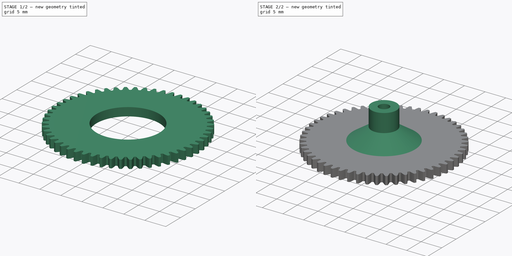
[diagram: build sequence overview — one tinted view per stage of 2, left to right]
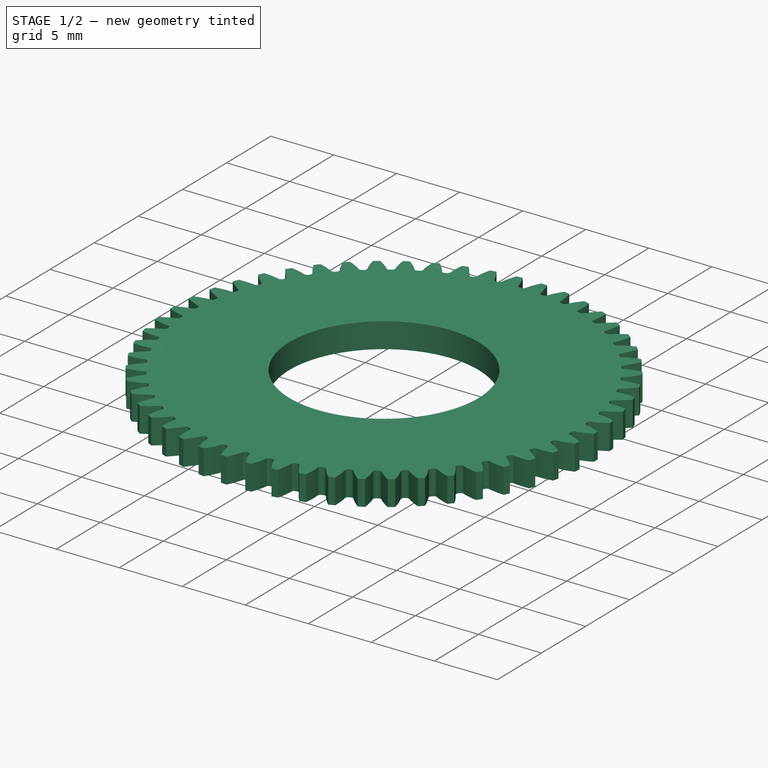
[diagram: stage 1 of 2 — iso view after this stage's code; geometry added in this stage tinted green]
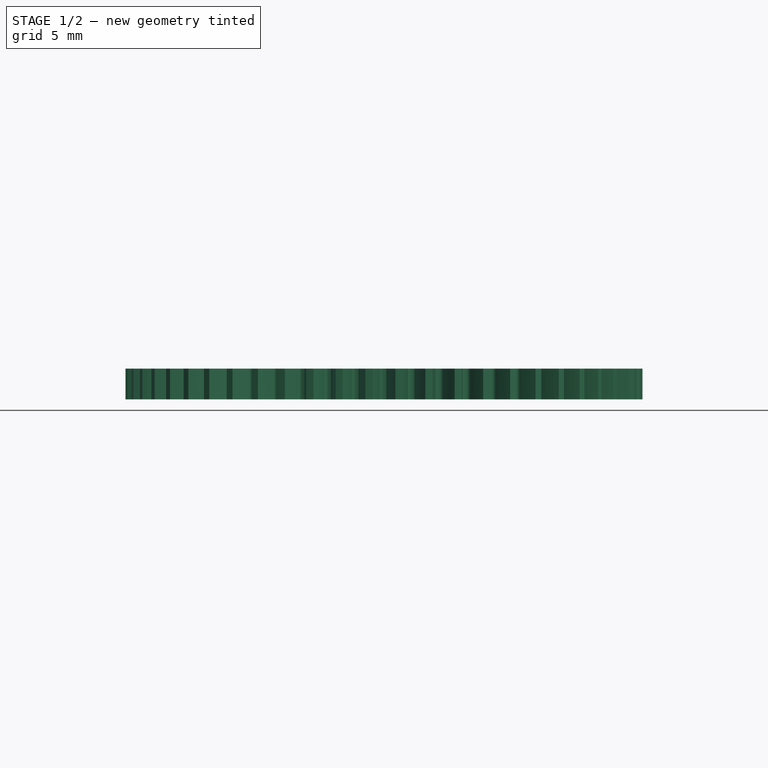
[diagram: stage 1 of 2 — front view after this stage's code; geometry added in this stage tinted green]
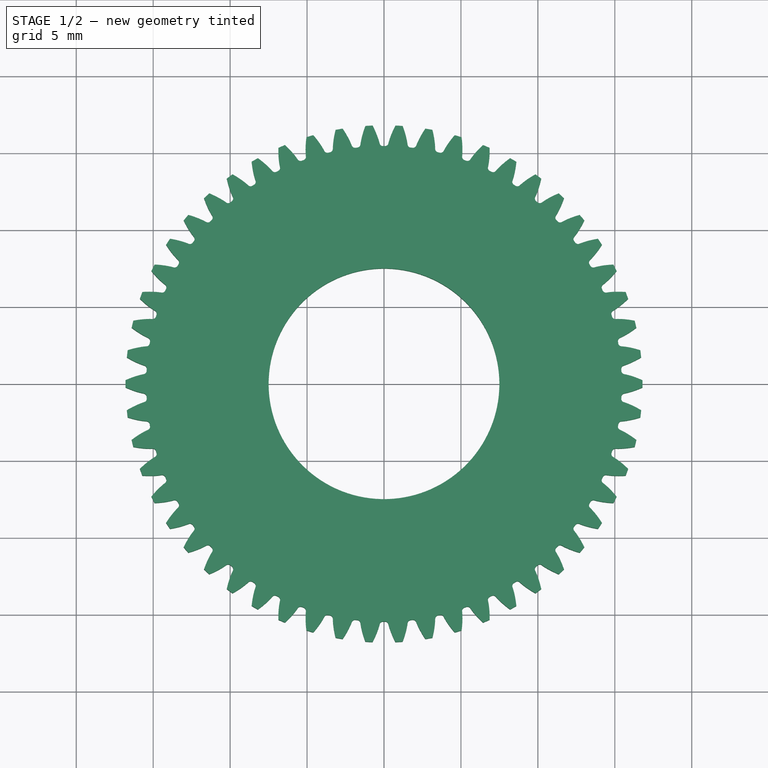
[diagram: stage 1 of 2 — top view after this stage's code; geometry added in this stage tinted green]
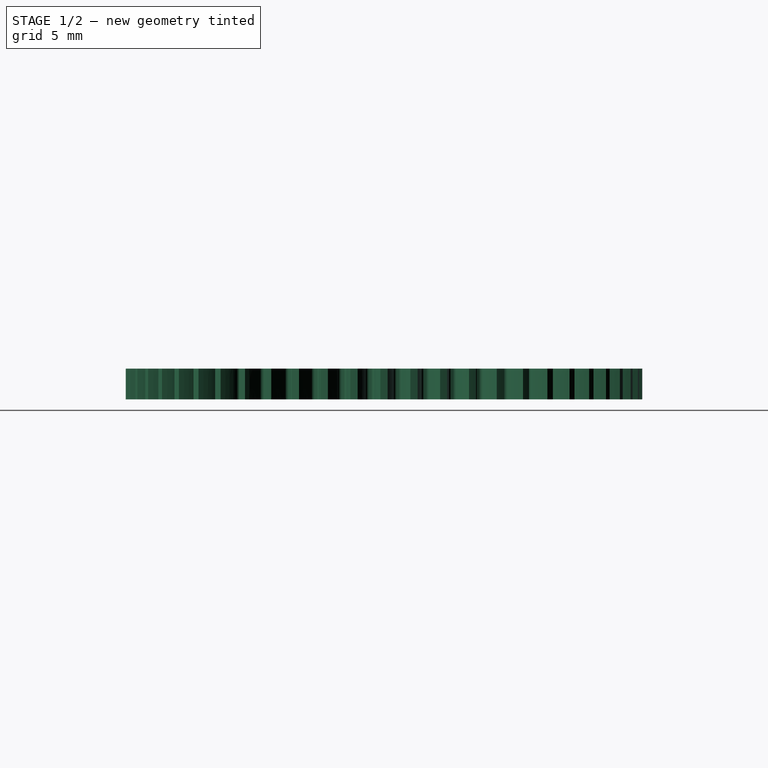
[diagram: stage 1 of 2 — right view after this stage's code; geometry added in this stage tinted green]
FCSTD DOCUMENT  (FreeCAD 0.21R33771 (Git))
Label: CD-Wechsler
License: All rights reserved
LicenseURL: http://en.wikipedia.org/wiki/All_rights_reserved
objects: Sketcher::SketchObject×3, Part::Part2DObjectPython×1, PartDesign::Pad×1, PartDesign::Pocket×1, PartDesign::Revolution×1, PartDesign::Body×1
note: 11 computed .brp shape members not serialized (recipe doc carries the construction recipe); baked Part::Feature solids carry a one-line shape summary decoded from their .brp

FEATURE [Part::Part2DObjectPython] InvoluteGear  # Draft 2D object (typed FeaturePython)
  AddendumCoefficient = 1
  DedendumCoefficient = 1.25
  ExternalGear = true
  HighPrecision = true
  Modules = 0.6
  NumberOfTeeth = 54
  PressureAngle = 20
  ProfileShiftCoefficient = 0
  RootFilletCoefficient = 0.38
FEATURE [Sketcher::SketchObject] Sketch
  FullyConstrained = true
  MapMode = 5
  Support = -> [XY_Plane]
  sketch-geometry (1):
    g0: Circle CenterX=0 CenterY=0 CenterZ=0 NormalX=0 NormalY=0 NormalZ=1 AngleXU=0 Radius=16.75
  constraints (2):
    c: Coincident(g0,g-1)
    c: Diameter(g0) = 33.5
FEATURE [PartDesign::Pad] Pad
  Direction = (0,0,1)
  Length = 2
  Length2 = 10
  Profile = -> InvoluteGear
  ReferenceAxis = -> InvoluteGear [N_Axis]
  Type = 0
FEATURE [Sketcher::SketchObject] Sketch001
  FullyConstrained = true
  MapMode = 5
  Support = -> [XY_Plane]
  sketch-geometry (1):
    g0: Circle CenterX=0 CenterY=0 CenterZ=0 NormalX=0 NormalY=0 NormalZ=1 AngleXU=0 Radius=7.5
  constraints (2):
    c: Coincident(g0,g-1)
    c: Diameter(g0) = 15
FEATURE [PartDesign::Pocket] Pocket
  BaseFeature = -> Pad
  Direction = (0,0,-1)
  Length = 5
  Length2 = 5
  Midplane = true
  Profile = -> Sketch001
  ReferenceAxis = -> Sketch001 [N_Axis]
  Type = 1
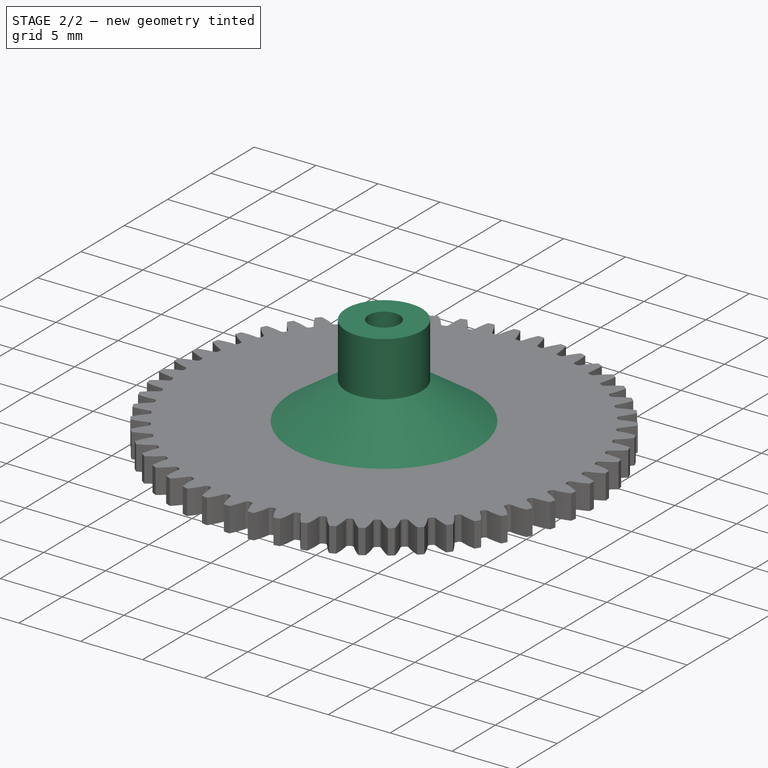
[diagram: stage 2 of 2 — iso view after this stage's code; geometry added in this stage tinted green]
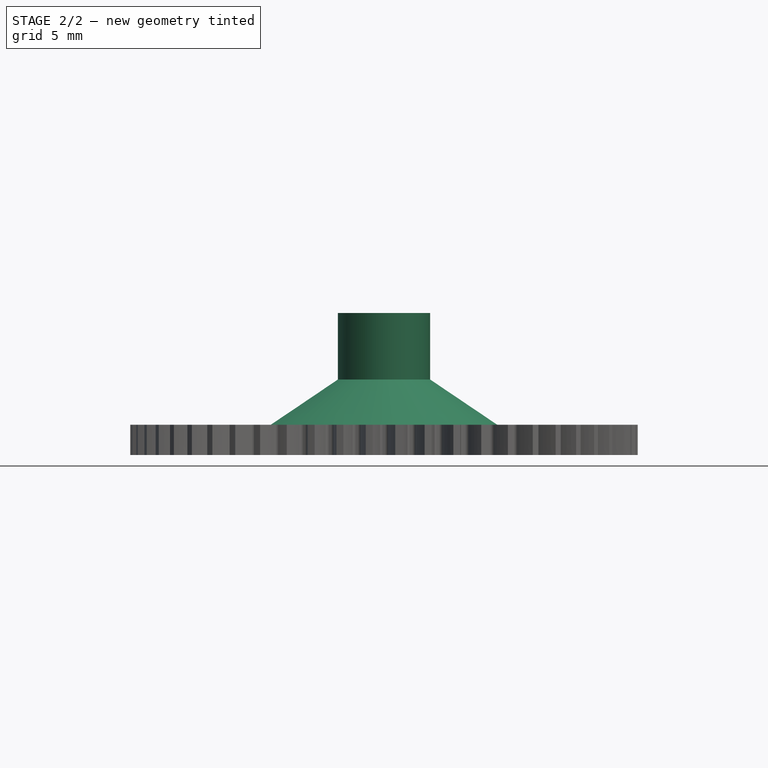
[diagram: stage 2 of 2 — front view after this stage's code; geometry added in this stage tinted green]
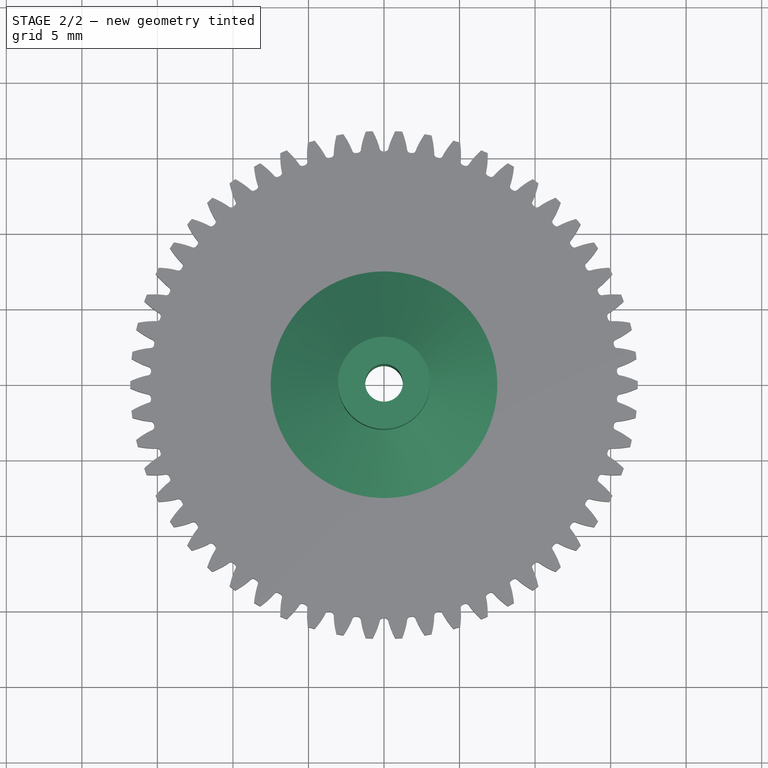
[diagram: stage 2 of 2 — top view after this stage's code; geometry added in this stage tinted green]
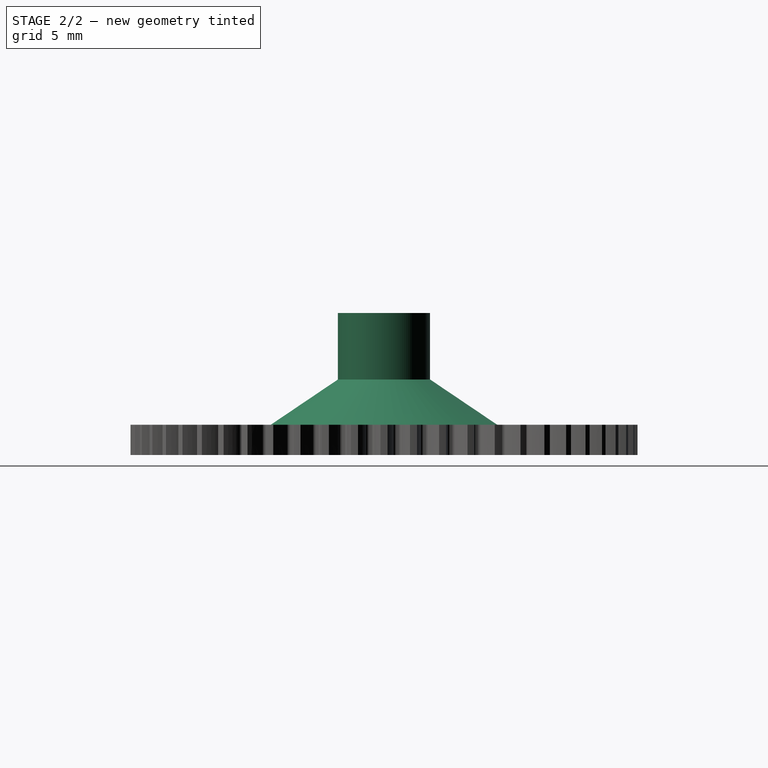
[diagram: stage 2 of 2 — right view after this stage's code; geometry added in this stage tinted green]
FEATURE [Sketcher::SketchObject] Sketch002
  ExternalGeometry = -> [Pocket]
  FullyConstrained = true
  MapMode = 5
  Placement = pos=(0,0,0) rot=(1,0,0;1.5708rad)
  Support = -> [XZ_Plane]
  sketch-geometry (10):
    g0: LineSegment StartX=1.25 StartY=9.4 StartZ=0 EndX=1.25 EndY=0.7 EndZ=0
    g1: LineSegment StartX=1.25 StartY=0.7 StartZ=0 EndX=3.05 EndY=0.7 EndZ=0
    g2: LineSegment StartX=3.05 StartY=0.7 StartZ=0 EndX=3.05 EndY=3 EndZ=0
    g3: LineSegment StartX=3.05 StartY=3 StartZ=0 EndX=7.5 EndY=0 EndZ=0
    g4: LineSegment StartX=7.5 StartY=0 StartZ=0 EndX=7.5 EndY=2 EndZ=0
    g5: LineSegment StartX=7.5 StartY=2 StartZ=0 EndX=3.05 EndY=5 EndZ=0
    g6: LineSegment StartX=3.05 StartY=5 StartZ=0 EndX=3.05 EndY=9.4 EndZ=0
    g7: LineSegment StartX=3.05 StartY=9.4 StartZ=0 EndX=1.25 EndY=9.4 EndZ=0
    g8: GeomPoint X=-1.25 Y=9.4 Z=0
    g9: GeomPoint X=-3.05 Y=9.4 Z=0
  constraints (25):
    c: Vertical(g0)
    c: Coincident(g0,g1)
    c: Horizontal(g1)
    c: Coincident(g1,g2)
    c: Vertical(g2)
    c: Coincident(g2,g3)
    c: Coincident(g3,g4)
    c: Vertical(g4)
    c: Coincident(g4,g5)
    c: Coincident(g5,g6)
    c: Vertical(g6)
    c: Coincident(g6,g7)
    c: Coincident(g7,g0)
    c: Parallel(g5,g3)
    c: Horizontal(g7)
    c: Symmetric(g8,g0,g-2)
    c: Symmetric(g9,g6,g-2)
    c: DistanceX(g8,g0) = 2.5
    c: DistanceX(g9,g6) = 6.1
    c: DistanceY(g-1,g6) = 9.4
    c: DistanceY(g-1,g0) = 0.7
    c: Coincident(g4,g-3)
    c: PointOnObject(g3,g-1)
    c: PointOnObject(g2,g6)
    c: DistanceY(g-1,g5) = 5
FEATURE [PartDesign::Revolution] Revolution
  Angle = 360
  Axis = (0,2e-16,1)
  Base = (0,0,0)
  BaseFeature = -> Pocket
  Profile = -> Sketch002
  ReferenceAxis = -> Sketch002 [V_Axis]
  Reversed = true
FEATURE [PartDesign::Body] Body  label="Körper"
  Group = -> [InvoluteGear,Sketch,Pad,Sketch001,Pocket,Sketch002,Revolution]
  Origin = -> Origin
  Tip = -> Revolution
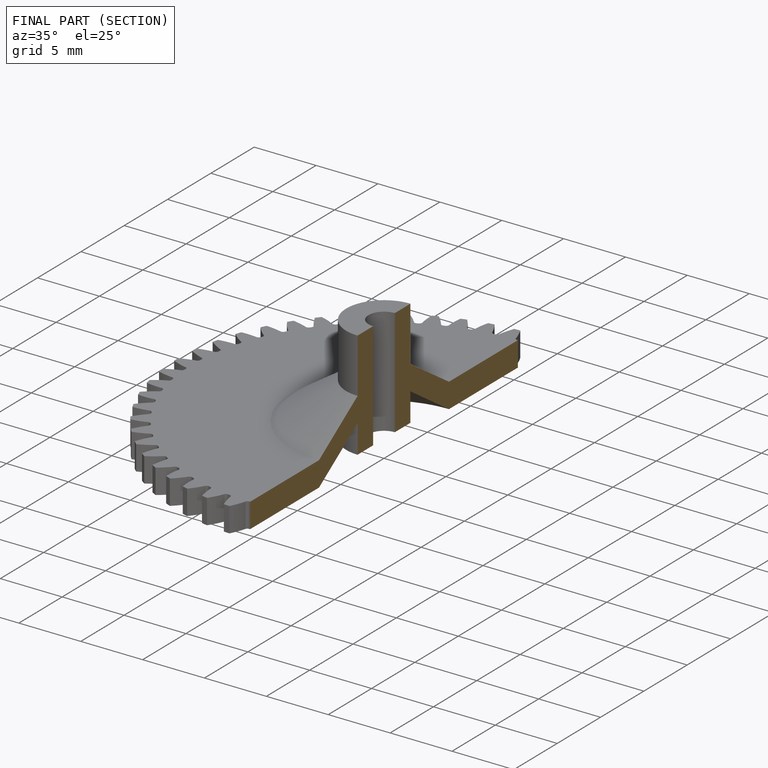
[diagram: finished part — half-section view (interior)]
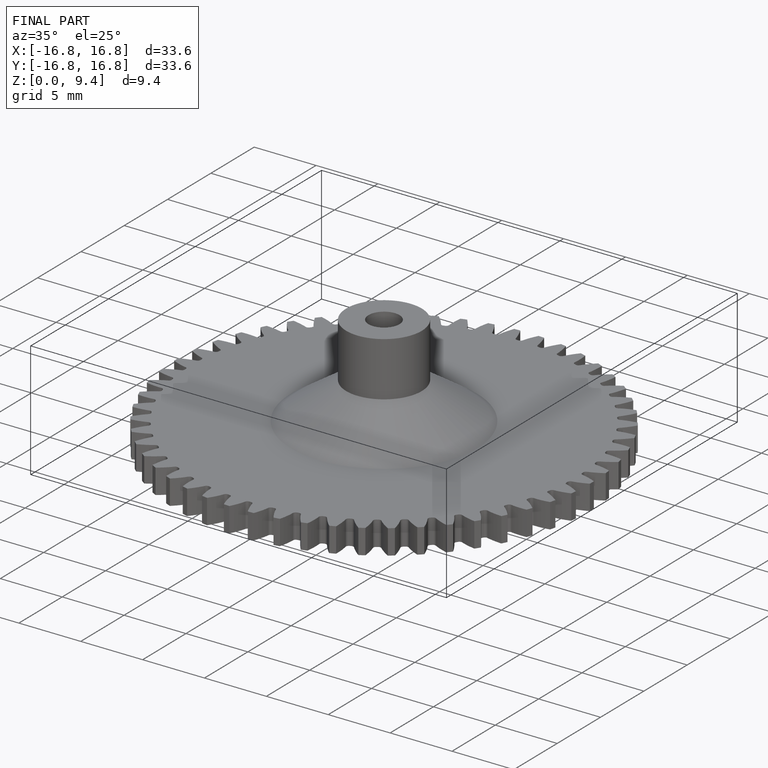
[diagram: finished part — iso view with bounding-box wireframe]
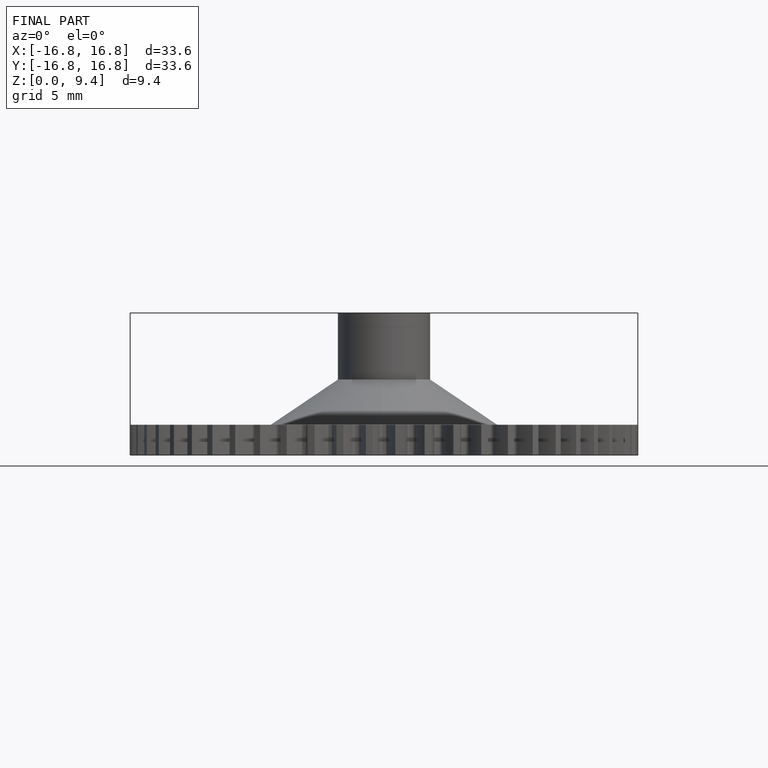
[diagram: finished part — front view with bounding-box wireframe]
